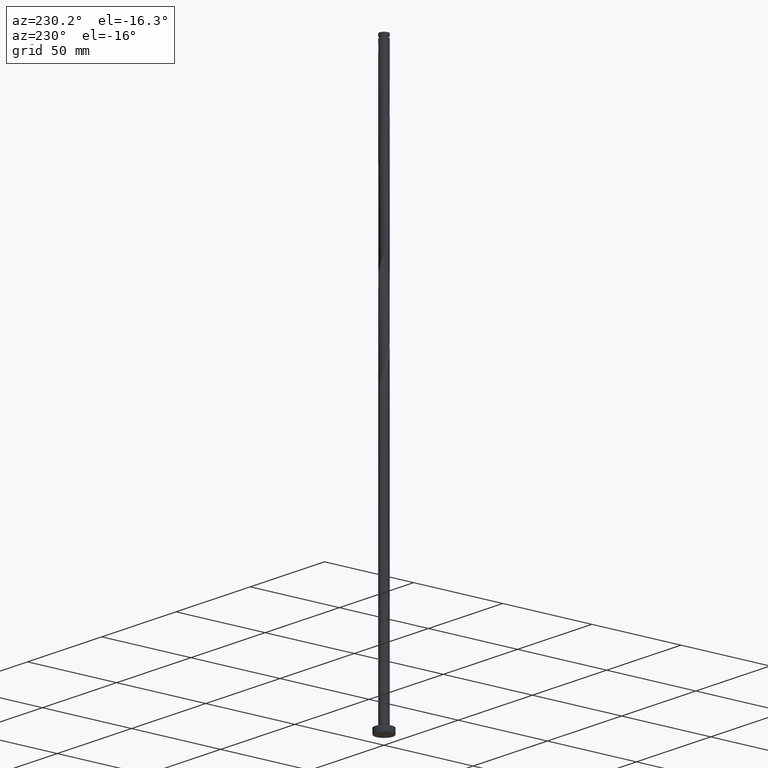
[diagram: clean part render]
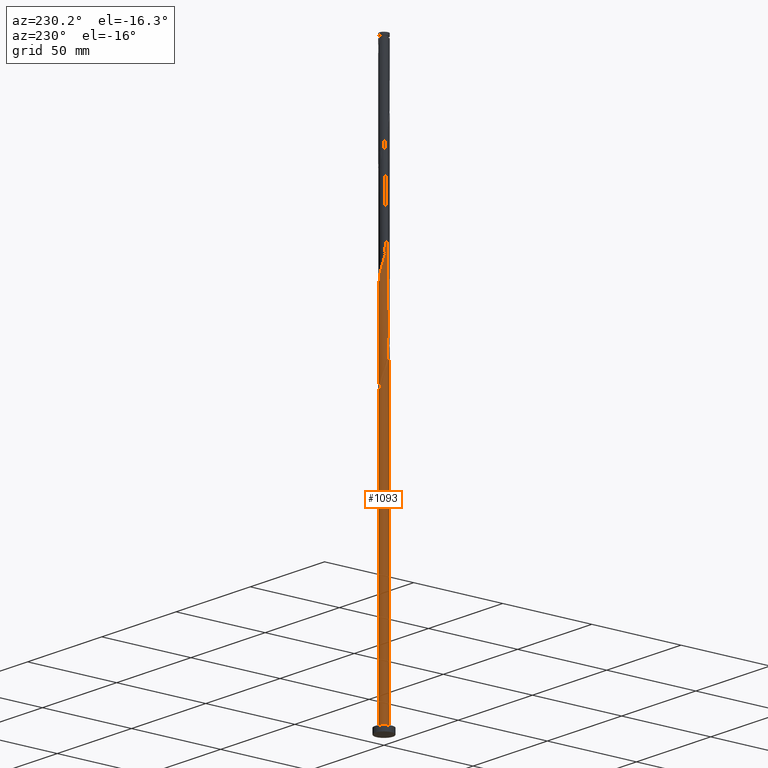
[diagram: same view with one face highlighted and labeled with its STEP entity id]
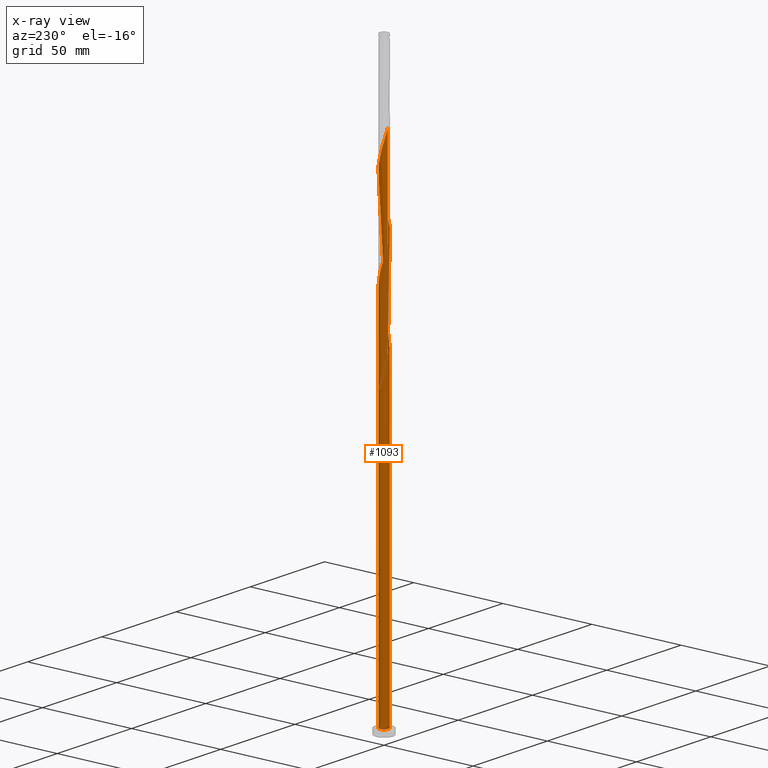
[diagram: x-ray of the same camera — body ghosted, the highlighted face saturated]
A machine part, auxiliary view. The second image highlights one B-rep face of the part: STEP entity #1093.
The next image is the same camera in x-ray: the body ghosted, the highlighted face saturated — about 0% of this face is hidden behind the body in this view.
In plain terms, the highlighted cylindrical surface (bore or boss wall) has radius 2.5 mm, axis along (-0, -0, -1).
Its self-contained STEP definition (entity closure, byte-faithful):
#4 = DIRECTION ( 'NONE',  ( -0.000000000000000000, -0.000000000000000000, -1.000000000000000000 ) ) ;
#10 = CARTESIAN_POINT ( 'NONE',  ( -2.506054079851243621, -0.2214450157980395184, 219.7921757170020385 ) ) ;
#13 = CARTESIAN_POINT ( 'NONE',  ( 2.353958098689213241, -0.8878210494104763484, 189.7921757170021237 ) ) ;
#14 = CARTESIAN_POINT ( 'NONE',  ( -0.7735424213085846379, 2.393945920148763395, 261.0421757170020669 ) ) ;
#17 = CARTESIAN_POINT ( 'NONE',  ( 2.097380685417676194, -1.389366476707185605, 240.4171757170020669 ) ) ;
#20 = CARTESIAN_POINT ( 'NONE',  ( -1.605304872039907016, -1.916506266048968454, 173.8546757170021522 ) ) ;
#25 = CARTESIAN_POINT ( 'NONE',  ( -2.500000000000004885, -6.231510445236996772E-16, 271.5551586390960779 ) ) ;
#30 = CARTESIAN_POINT ( 'NONE',  ( -2.161795315762413683, -1.286851179782861898, 171.0421757170021237 ) ) ;
#35 = CARTESIAN_POINT ( 'NONE',  ( -1.511241513231561751, 1.991519291567521277, 263.8546757170021806 ) ) ;
#41 = CARTESIAN_POINT ( 'NONE',  ( -2.353958098689213241, 0.8878210494104757933, 216.0421757170020669 ) ) ;
#52 =( BOUNDED_CURVE ( )  B_SPLINE_CURVE ( 2, ( #371, #784, #1219, #1229, #936, #104, #1076, #502, #1083, #96, #1496, #242, #926, #953, #1639, #387, #1644 ),
 .UNSPECIFIED., .F., .T. ) 
 B_SPLINE_CURVE_WITH_KNOTS ( ( 3, 2, 2, 2, 2, 2, 2, 2, 3 ),
 ( 0.9295303401299221946, 0.9375000000000000000, 0.9464285714285713969, 0.9553571428571429047, 0.9642857142857143016, 0.9732142857142856984, 0.9821428571428570953, 0.9910714285714286031, 1.000000000000000000 ),
 .UNSPECIFIED. ) 
 CURVE ( )  GEOMETRIC_REPRESENTATION_ITEM ( )  RATIONAL_B_SPLINE_CURVE ( ( 0.9079949616362208431, 0.9039886423360843359, 0.9090909090909509160, 0.9033747362666260106, 0.9090909090909509160, 0.9033747362666260106, 0.9090909090909509160, 0.9033747362666260106, 0.9090909090909509160, 0.9033747362666260106, 0.9090909090909509160, 0.9033747362666260106, 0.9090909090909509160, 0.9033747362666260106, 0.9090909090909509160, 0.9033747362666260106, 0.9090909090909509160 ) ) 
 REPRESENTATION_ITEM ( '' )  );
#53 = CARTESIAN_POINT ( 'NONE',  ( -2.423228161154339588, 0.6147888084444768086, 216.9796757170021522 ) ) ;
#56 = CARTESIAN_POINT ( 'NONE',  ( -2.499276151735354556, 0.06015577584021881280, 166.3546757170020953 ) ) ;
#65 = CARTESIAN_POINT ( 'NONE',  ( 0.7735424213085844158, -2.393945920148763840, 234.7921757170020953 ) ) ;
#68 = CARTESIAN_POINT ( 'NONE',  ( -2.097380685417676194, 1.389366476707185161, 161.6671757170020953 ) ) ;
#78 = CARTESIAN_POINT ( 'NONE',  ( 2.500000000000000000, 0.000000000000000000, 3.000000000000000000 ) ) ;
#96 = CARTESIAN_POINT ( 'NONE',  ( -1.389366476707182052, 2.097380685417672197, 161.6671757170021237 ) ) ;
#104 = CARTESIAN_POINT ( 'NONE',  ( -2.161795315762410130, 1.286851179782860122, 165.4171757170020669 ) ) ;
#108 = CARTESIAN_POINT ( 'NONE',  ( -1.389366476707185161, -2.097380685417676194, 227.2921757170021237 ) ) ;
#109 = ORIENTED_EDGE ( 'NONE', *, *, #1006, .F. ) ;
#117 = DIRECTION ( 'NONE',  ( 1.000000000000000000, 0.000000000000000000, 0.000000000000000000 ) ) ;
#122 = CARTESIAN_POINT ( 'NONE',  ( 1.389366476707185605, 2.097380685417676194, 201.0421757170020385 ) ) ;
#129 = LINE ( 'NONE', #281, #474 ) ;
#136 = CARTESIAN_POINT ( 'NONE',  ( 0.3417565674784777130, 2.492498223619464159, 257.2921757170021237 ) ) ;
#143 = CARTESIAN_POINT ( 'NONE',  ( -2.225669392053444273, 1.138593763058830755, 267.6046757170021237 ) ) ;
#153 = CARTESIAN_POINT ( 'NONE',  ( 2.097380685417676194, -1.389366476707185605, 187.9171757170020669 ) ) ;
#158 = VERTEX_POINT ( 'NONE', #78 ) ;
#159 = CARTESIAN_POINT ( 'NONE',  ( -1.821243267372628427, -1.735631846680259827, 172.9171757170021237 ) ) ;
#162 = CARTESIAN_POINT ( 'NONE',  ( -2.450000000000003730, -0.4974937185533121475, 220.7296757170021522 ) ) ;
#165 = CARTESIAN_POINT ( 'NONE',  ( 0.06015577584021940261, 2.499276151735354556, 258.2296757170021237 ) ) ;
#174 = CARTESIAN_POINT ( 'NONE',  ( 2.225669392053444273, -1.138593763058830977, 241.3546757170021237 ) ) ;
#190 = EDGE_CURVE ( 'NONE', #870, #895, #1791, .T. ) ;
#198 = CARTESIAN_POINT ( 'NONE',  ( -2.500000000000000000, 0.000000000000000000, 315.0000000000000000 ) ) ;
#209 = DIRECTION ( 'NONE',  ( -0.000000000000000000, -0.000000000000000000, -1.000000000000000000 ) ) ;
#215 = CARTESIAN_POINT ( 'NONE',  ( 0.4974937185533118145, -2.450000000000003730, 233.8546757170021522 ) ) ;
#242 = CARTESIAN_POINT ( 'NONE',  ( -0.8878210494104737949, 2.353958098689209244, 159.7921757170021237 ) ) ;
#253 = CARTESIAN_POINT ( 'NONE',  ( 2.161795315762413683, 1.286851179782861676, 197.2921757170021522 ) ) ;
#263 = ORIENTED_EDGE ( 'NONE', *, *, #528, .T. ) ;
#268 = CARTESIAN_POINT ( 'NONE',  ( -2.500000000000004885, -6.231510445236996772E-16, 271.5551586390960779 ) ) ;
#278 = CARTESIAN_POINT ( 'NONE',  ( 1.511241513231561528, -1.991519291567521277, 185.1046757170021237 ) ) ;
#279 = CARTESIAN_POINT ( 'NONE',  ( 2.450000000000003730, 0.4974937185533118145, 246.9796757170021237 ) ) ;
#281 = CARTESIAN_POINT ( 'NONE',  ( -2.500000000000000000, 0.000000000000000000, 315.0000000000000000 ) ) ;
#283 = CARTESIAN_POINT ( 'NONE',  ( -2.500000000000004885, -1.003758269322606206E-15, 166.5551586390961347 ) ) ;
#289 = CARTESIAN_POINT ( 'NONE',  ( 1.030196800545723157, -2.277870617955588983, 183.2296757170021806 ) ) ;
#292 = CARTESIAN_POINT ( 'NONE',  ( 1.916506266048968010, -1.605304872039907016, 239.4796757170021237 ) ) ;
#306 = CARTESIAN_POINT ( 'NONE',  ( 0.000000000000000000, 0.000000000000000000, 155.1046757170021237 ) ) ;
#332 = CARTESIAN_POINT ( 'NONE',  ( -2.423228161154339588, 0.6147888084444768086, 164.4796757170021237 ) ) ;
#371 = CARTESIAN_POINT ( 'NONE',  ( -2.499999999999999112, 1.682880964552041655E-15, 169.9041927949081980 ) ) ;
#381 = AXIS2_PLACEMENT_3D ( 'NONE', #1724, #1022, #767 ) ;
#387 = CARTESIAN_POINT ( 'NONE',  ( 0.2214450157980396849, 2.506054079851238736, 156.0421757170020669 ) ) ;
#390 = CARTESIAN_POINT ( 'NONE',  ( -0.7735424213085846379, 2.393945920148763395, 208.5421757170020669 ) ) ;
#398 = CARTESIAN_POINT ( 'NONE',  ( 0.6147888084444771417, 2.423228161154339588, 203.8546757170021522 ) ) ;
#410 = CIRCLE ( 'NONE', #504, 2.500000000000000000 ) ;
#418 = CARTESIAN_POINT ( 'NONE',  ( 2.393945920148763840, 0.7735424213085844158, 247.9171757170020953 ) ) ;
#434 = DIRECTION ( 'NONE',  ( 1.000000000000000000, 0.000000000000000000, 0.000000000000000000 ) ) ;
#439 = CARTESIAN_POINT ( 'NONE',  ( 1.030196800545723157, -2.277870617955588983, 235.7296757170020953 ) ) ;
#443 = CARTESIAN_POINT ( 'NONE',  ( -0.8878210494104763484, -2.353958098689213241, 176.6671757170020385 ) ) ;
#451 = CARTESIAN_POINT ( 'NONE',  ( -2.393945920148763395, -0.7735424213085844158, 169.1671757170020669 ) ) ;
#474 = VECTOR ( 'NONE', #4, 1000.000000000000000 ) ;
#502 = CARTESIAN_POINT ( 'NONE',  ( -1.821243267372623542, 1.735631846680256718, 163.5421757170021237 ) ) ;
#504 = AXIS2_PLACEMENT_3D ( 'NONE', #517, #1778, #117 ) ;
#505 = CARTESIAN_POINT ( 'NONE',  ( -2.225669392053444273, 1.138593763058830755, 215.1046757170021522 ) ) ;
#508 = CARTESIAN_POINT ( 'NONE',  ( -1.821243267372628427, -1.735631846680259827, 225.4171757170020669 ) ) ;
#514 = EDGE_CURVE ( 'NONE', #895, #842, #129, .T. ) ;
#517 = CARTESIAN_POINT ( 'NONE',  ( 0.000000000000000000, 0.000000000000000000, 3.000000000000000000 ) ) ;
#525 = CARTESIAN_POINT ( 'NONE',  ( -0.6147888084444770307, -2.423228161154339588, 230.1046757170020669 ) ) ;
#528 = EDGE_CURVE ( 'NONE', #158, #842, #1547, .T. ) ;
#539 = CARTESIAN_POINT ( 'NONE',  ( 0.7735424213085844158, -2.393945920148763840, 182.2921757170020953 ) ) ;
#540 = CARTESIAN_POINT ( 'NONE',  ( -2.097380685417676194, 1.389366476707185161, 214.1671757170021237 ) ) ;
#541 = CARTESIAN_POINT ( 'NONE',  ( 1.821243267372628427, 1.735631846680259605, 199.1671757170020953 ) ) ;
#548 = CARTESIAN_POINT ( 'NONE',  ( 0.2214450157980393796, -2.506054079851243621, 180.4171757170021522 ) ) ;
#557 = CARTESIAN_POINT ( 'NONE',  ( -0.3417565674784773799, -2.492498223619464603, 178.5421757170020669 ) ) ;
#558 = CARTESIAN_POINT ( 'NONE',  ( 1.138593763058830977, 2.225669392053444273, 254.4796757170021522 ) ) ;
#564 = DIRECTION ( 'NONE',  ( 0.000000000000000000, -0.000000000000000000, -1.000000000000000000 ) ) ;
#566 = CARTESIAN_POINT ( 'NONE',  ( -2.097380685417676194, 1.389366476707185161, 266.6671757170020669 ) ) ;
#575 = CARTESIAN_POINT ( 'NONE',  ( -1.286851179782861898, 2.161795315762413683, 262.9171757170020669 ) ) ;
#588 = CARTESIAN_POINT ( 'NONE',  ( -2.499276151735354556, 0.06015577584021881280, 218.8546757170021237 ) ) ;
#592 = CARTESIAN_POINT ( 'NONE',  ( -2.423228161154339588, 0.6147888084444768086, 269.4796757170022374 ) ) ;
#595 = CARTESIAN_POINT ( 'NONE',  ( -0.06015577584021904178, -2.499276151735355000, 231.9796757170020953 ) ) ;
#600 = CARTESIAN_POINT ( 'NONE',  ( -2.277870617955588983, -1.030196800545723379, 222.6046757170022090 ) ) ;
#603 = CARTESIAN_POINT ( 'NONE',  ( -1.511241513231561751, 1.991519291567521277, 158.8546757170021237 ) ) ;
#605 = LINE ( 'NONE', #198, #675 ) ;
#623 = CARTESIAN_POINT ( 'NONE',  ( -2.225669392053444273, 1.138593763058830755, 162.6046757170021237 ) ) ;
#662 = CARTESIAN_POINT ( 'NONE',  ( -1.138593763058830755, -2.225669392053444273, 228.2296757170021806 ) ) ;
#674 = CARTESIAN_POINT ( 'NONE',  ( -1.511241513231561751, 1.991519291567521277, 211.3546757170021237 ) ) ;
#675 = VECTOR ( 'NONE', #209, 1000.000000000000000 ) ;
#676 = CARTESIAN_POINT ( 'NONE',  ( 1.138593763058830977, 2.225669392053444273, 201.9796757170021237 ) ) ;
#695 = CARTESIAN_POINT ( 'NONE',  ( -0.2214450157980390188, 2.506054079851243621, 259.1671757170020669 ) ) ;
#702 = CARTESIAN_POINT ( 'NONE',  ( -1.916506266048968232, 1.605304872039907016, 265.7296757170021237 ) ) ;
#708 = ORIENTED_EDGE ( 'NONE', *, *, #1666, .T. ) ;
#719 = CARTESIAN_POINT ( 'NONE',  ( -2.393945920148763395, -0.7735424213085844158, 221.6671757170021237 ) ) ;
#721 = CARTESIAN_POINT ( 'NONE',  ( -1.286851179782861898, 2.161795315762413683, 210.4171757170020669 ) ) ;
#723 = CARTESIAN_POINT ( 'NONE',  ( 1.389366476707185605, 2.097380685417676194, 253.5421757170019816 ) ) ;
#732 = CARTESIAN_POINT ( 'NONE',  ( -2.353958098689213241, 0.8878210494104757933, 268.5421757170021806 ) ) ;
#734 = EDGE_LOOP ( 'NONE', ( #109, #1216, #1447, #708, #263, #1786, #1111, #747, #1133 ) ) ;
#747 = ORIENTED_EDGE ( 'NONE', *, *, #1551, .T. ) ;
#767 = DIRECTION ( 'NONE',  ( -1.000000000000000000, 0.000000000000000000, 0.000000000000000000 ) ) ;
#784 = CARTESIAN_POINT ( 'NONE',  ( -2.499999999999997780, 0.2512594538148081313, 169.0659217159445404 ) ) ;
#804 = CARTESIAN_POINT ( 'NONE',  ( 2.506054079851243621, 0.2214450157980391853, 193.5421757170020385 ) ) ;
#819 = CARTESIAN_POINT ( 'NONE',  ( -0.6147888084444770307, -2.423228161154339588, 177.6046757170021522 ) ) ;
#821 = VERTEX_POINT ( 'NONE', #1584 ) ;
#835 = CARTESIAN_POINT ( 'NONE',  ( -1.030196800545723379, 2.277870617955588983, 261.9796757170021237 ) ) ;
#842 = VERTEX_POINT ( 'NONE', #1092 ) ;
#845 = CARTESIAN_POINT ( 'NONE',  ( 1.605304872039907016, 1.916506266048968010, 252.6046757170020669 ) ) ;
#855 = CARTESIAN_POINT ( 'NONE',  ( -2.492498223619464603, 0.3417565674784772689, 270.4171757170021237 ) ) ;
#864 = CARTESIAN_POINT ( 'NONE',  ( 2.423228161154339588, -0.6147888084444771417, 243.2296757170020953 ) ) ;
#870 = VERTEX_POINT ( 'NONE', #1647 ) ;
#872 = CARTESIAN_POINT ( 'NONE',  ( -0.4974937185533115924, 2.450000000000003730, 155.1046757170021237 ) ) ;
#882 = CARTESIAN_POINT ( 'NONE',  ( -1.030196800545723379, 2.277870617955588983, 156.9796757170021237 ) ) ;
#895 = VERTEX_POINT ( 'NONE', #1353 ) ;
#908 = CARTESIAN_POINT ( 'NONE',  ( 1.511241513231561528, -1.991519291567521277, 237.6046757170021522 ) ) ;
#926 = CARTESIAN_POINT ( 'NONE',  ( -0.6147888084444751433, 2.423228161154335147, 158.8546757170021522 ) ) ;
#928 = CARTESIAN_POINT ( 'NONE',  ( 2.393945920148763840, 0.7735424213085844158, 195.4171757170021806 ) ) ;
#936 = CARTESIAN_POINT ( 'NONE',  ( -2.277870617955584098, 1.030196800545722269, 166.3546757170021237 ) ) ;
#938 = EDGE_CURVE ( 'NONE', #895, #1571, #1088, .T. ) ;
#939 = AXIS2_PLACEMENT_3D ( 'NONE', #306, #564, #1385 ) ;
#948 = CARTESIAN_POINT ( 'NONE',  ( 2.277870617955588983, 1.030196800545723157, 196.3546757170021237 ) ) ;
#953 = CARTESIAN_POINT ( 'NONE',  ( -0.3417565674784759922, 2.492498223619459718, 157.9171757170020669 ) ) ;
#959 = CARTESIAN_POINT ( 'NONE',  ( 0.2214450157980393796, -2.506054079851243621, 232.9171757170020953 ) ) ;
#984 = CARTESIAN_POINT ( 'NONE',  ( 2.506054079851243621, 0.2214450157980391853, 246.0421757170021237 ) ) ;
#1006 = EDGE_CURVE ( 'NONE', #1571, #821, #605, .T. ) ;
#1011 = CARTESIAN_POINT ( 'NONE',  ( -2.500000000000005329, 0.03008224291596932679, 166.4547959508710164 ) ) ;
#1022 = DIRECTION ( 'NONE',  ( -0.000000000000000000, -0.000000000000000000, -1.000000000000000000 ) ) ;
#1056 = CARTESIAN_POINT ( 'NONE',  ( -1.605304872039907016, -1.916506266048968454, 226.3546757170021237 ) ) ;
#1059 = CARTESIAN_POINT ( 'NONE',  ( -2.492498223619464603, 0.3417565674784772689, 217.9171757170021237 ) ) ;
#1071 = CARTESIAN_POINT ( 'NONE',  ( -0.3417565674784773799, -2.492498223619464603, 231.0421757170021237 ) ) ;
#1076 = CARTESIAN_POINT ( 'NONE',  ( -1.991519291567517280, 1.511241513231559530, 164.4796757170022090 ) ) ;
#1079 = CARTESIAN_POINT ( 'NONE',  ( 2.450000000000003730, 0.4974937185533118145, 194.4796757170021806 ) ) ;
#1083 = CARTESIAN_POINT ( 'NONE',  ( -1.605304872039903463, 1.916506266048965124, 162.6046757170021237 ) ) ;
#1088 =( BOUNDED_CURVE ( )  B_SPLINE_CURVE ( 2, ( #283, #1700, #1391, #451, #1667, #30, #1405, #159, #20, #1124, #1688, #443, #819, #557, #1654, #548, #1239, #539, #289, #1661, #278, #1108, #1397, #153, #1266, #13, #1646, #1222, #1211, #804, #1079, #928, #948, #253, #1490, #541, #1363, #122, #676, #1232, #398, #1117, #1631, #1221, #1774, #390, #1362, #721, #674, #1274, #1784, #540, #505, #41, #53, #1059, #588, #10, #162, #719, #600, #1148, #1348, #508, #1056, #108, #662, #1215, #525, #1071, #595, #959, #215, #65, #439, #1240, #908, #1471, #292, #17, #174, #1101, #864, #1518, #1257, #984, #279, #418, #1119, #1662, #1683, #1673, #845, #723, #558, #1380, #1527, #136, #165, #695, #1276, #14, #835, #575, #35, #1559, #702, #566, #143, #732, #592, #855, #1548, #1283, #268 ),
 .UNSPECIFIED., .F., .T. ) 
 B_SPLINE_CURVE_WITH_KNOTS ( ( 3, 2, 2, 2, 2, 2, 2, 2, 2, 2, 2, 2, 2, 2, 2, 2, 2, 2, 2, 2, 2, 2, 2, 2, 2, 2, 2, 2, 2, 2, 2, 2, 2, 2, 2, 2, 2, 2, 2, 2, 2, 2, 2, 2, 2, 2, 2, 2, 2, 2, 2, 2, 2, 2, 2, 2, 2, 3 ),
 ( 0.05453034012992227092, 0.06250000000000000000, 0.07142857142857139685, 0.08035714285714290472, 0.08928571428571430157, 0.09821428571428569843, 0.1071428571428570953, 0.1160714285714286031, 0.1250000000000000000, 0.1339285714285713969, 0.1428571428571429047, 0.1517857142857143016, 0.1607142857142856984, 0.1696428571428570953, 0.1785714285714286031, 0.1875000000000000000, 0.1964285714285713969, 0.2053571428571429047, 0.2142857142857143016, 0.2232142857142856984, 0.2321428571428570953, 0.2410714285714286031, 0.2500000000000000000, 0.2589285714285713969, 0.2678571428571429047, 0.2767857142857143016, 0.2857142857142856984, 0.2946428571428570953, 0.3035714285714286031, 0.3125000000000000000, 0.3214285714285713969, 0.3303571428571429047, 0.3392857142857143016, 0.3482142857142856984, 0.3571428571428570953, 0.3660714285714286031, 0.3750000000000000000, 0.3839285714285713969, 0.3928571428571429047, 0.4017857142857143016, 0.4107142857142856984, 0.4196428571428570953, 0.4285714285714286031, 0.4375000000000000000, 0.4464285714285713969, 0.4553571428571429047, 0.4642857142857143016, 0.4732142857142856984, 0.4821428571428570953, 0.4910714285714286031, 0.5000000000000000000, 0.5089285714285713969, 0.5178571428571427937, 0.5267857142857143016, 0.5357142857142856984, 0.5446428571428572063, 0.5535714285714286031, 0.5545303401299219725 ),
 .UNSPECIFIED. ) 
 CURVE ( )  GEOMETRIC_REPRESENTATION_ITEM ( )  RATIONAL_B_SPLINE_CURVE ( ( 0.9079949616362286147, 0.9039886423360921075, 0.9090909090909586876, 0.9033747362666336711, 0.9090909090909586876, 0.9033747362666336711, 0.9090909090909586876, 0.9033747362666336711, 0.9090909090909586876, 0.9033747362666336711, 0.9090909090909586876, 0.9033747362666336711, 0.9090909090909586876, 0.9033747362666336711, 0.9090909090909586876, 0.9033747362666336711, 0.9090909090909586876, 0.9033747362666336711, 0.9090909090909586876, 0.9033747362666336711, 0.9090909090909586876, 0.9033747362666336711, 0.9090909090909586876, 0.9033747362666336711, 0.9090909090909586876, 0.9033747362666336711, 0.9090909090909586876, 0.9033747362666336711, 0.9090909090909586876, 0.9033747362666336711, 0.9090909090909586876, 0.9033747362666336711, 0.9090909090909586876, 0.9033747362666336711, 0.9090909090909586876, 0.9033747362666336711, 0.9090909090909586876, 0.9033747362666336711, 0.9090909090909586876, 0.9033747362666336711, 0.9090909090909586876, 0.9033747362666336711, 0.9090909090909586876, 0.9033747362666336711, 0.9090909090909586876, 0.9033747362666336711, 0.9090909090909586876, 0.9033747362666336711, 0.9090909090909586876, 0.9033747362666336711, 0.9090909090909586876, 0.9033747362666336711, 0.9090909090909586876, 0.9033747362666336711, 0.9090909090909586876, 0.9033747362666336711, 0.9090909090909586876, 0.9033747362666336711, 0.9090909090909586876, 0.9033747362666336711, 0.9090909090909586876, 0.9033747362666336711, 0.9090909090909586876, 0.9033747362666336711, 0.9090909090909586876, 0.9033747362666336711, 0.9090909090909586876, 0.9033747362666336711, 0.9090909090909586876, 0.9033747362666336711, 0.9090909090909586876, 0.9033747362666336711, 0.9090909090909586876, 0.9033747362666336711, 0.9090909090909586876, 0.9033747362666336711, 0.9090909090909586876, 0.9033747362666336711, 0.9090909090909586876, 0.9033747362666336711, 0.9090909090909586876, 0.9033747362666336711, 0.9090909090909586876, 0.9033747362666336711, 0.9090909090909586876, 0.9033747362666336711, 0.9090909090909586876, 0.9033747362666336711, 0.9090909090909586876, 0.9033747362666336711, 0.9090909090909586876, 0.9033747362666336711, 0.9090909090909586876, 0.9033747362666336711, 0.9090909090909586876, 0.9033747362666336711, 0.9090909090909586876, 0.9033747362666336711, 0.9090909090909586876, 0.9033747362666336711, 0.9090909090909586876, 0.9033747362666336711, 0.9090909090909586876, 0.9033747362666336711, 0.9090909090909586876, 0.9033747362666336711, 0.9090909090909586876, 0.9033747362666336711, 0.9090909090909586876, 0.9033747362666336711, 0.9090909090909586876, 0.9033747362666336711, 0.9090909090909586876, 0.9084770030215004732, 0.9079949616362288367 ) ) 
 REPRESENTATION_ITEM ( '' )  );
#1092 = CARTESIAN_POINT ( 'NONE',  ( -2.500000000000000000, 0.000000000000000000, 3.000000000000000000 ) ) ;
#1093 = ADVANCED_FACE ( 'NONE', ( #1605 ), #1307, .T. ) ;
#1101 = CARTESIAN_POINT ( 'NONE',  ( 2.353958098689213241, -0.8878210494104763484, 242.2921757170020669 ) ) ;
#1108 = CARTESIAN_POINT ( 'NONE',  ( 1.735631846680259827, -1.821243267372628427, 186.0421757170020953 ) ) ;
#1111 = ORIENTED_EDGE ( 'NONE', *, *, #190, .F. ) ;
#1117 = CARTESIAN_POINT ( 'NONE',  ( 0.3417565674784777130, 2.492498223619464159, 204.7921757170021237 ) ) ;
#1119 = CARTESIAN_POINT ( 'NONE',  ( 2.277870617955588983, 1.030196800545723157, 248.8546757170021237 ) ) ;
#1124 = CARTESIAN_POINT ( 'NONE',  ( -1.389366476707185161, -2.097380685417676194, 174.7921757170020953 ) ) ;
#1133 = ORIENTED_EDGE ( 'NONE', *, *, #1344, .F. ) ;
#1136 = VERTEX_POINT ( 'NONE', #1176 ) ;
#1138 = CARTESIAN_POINT ( 'NONE',  ( -0.7735424213085846379, 2.393945920148763395, 156.0421757170020953 ) ) ;
#1148 = CARTESIAN_POINT ( 'NONE',  ( -2.161795315762413683, -1.286851179782861898, 223.5421757170020669 ) ) ;
#1174 = CARTESIAN_POINT ( 'NONE',  ( -2.500000000000004885, -1.003758269322606206E-15, 166.5551586390961347 ) ) ;
#1176 = CARTESIAN_POINT ( 'NONE',  ( 0.4974937185533123141, 2.449999999999998401, 155.1046757170021237 ) ) ;
#1211 = CARTESIAN_POINT ( 'NONE',  ( 2.499276151735355000, -0.06015577584021924301, 192.6046757170021806 ) ) ;
#1215 = CARTESIAN_POINT ( 'NONE',  ( -0.8878210494104763484, -2.353958098689213241, 229.1671757170021806 ) ) ;
#1216 = ORIENTED_EDGE ( 'NONE', *, *, #938, .F. ) ;
#1219 = CARTESIAN_POINT ( 'NONE',  ( -2.449999999999998401, 0.4974937185533118145, 168.2296757170021806 ) ) ;
#1221 = CARTESIAN_POINT ( 'NONE',  ( -0.2214450157980390188, 2.506054079851243621, 206.6671757170021237 ) ) ;
#1222 = CARTESIAN_POINT ( 'NONE',  ( 2.492498223619464159, -0.3417565674784776020, 191.6671757170021237 ) ) ;
#1228 = AXIS2_PLACEMENT_3D ( 'NONE', #1775, #1456, #434 ) ;
#1229 = CARTESIAN_POINT ( 'NONE',  ( -2.393945920148757622, 0.7735424213085836387, 167.2921757170021522 ) ) ;
#1232 = CARTESIAN_POINT ( 'NONE',  ( 0.8878210494104767925, 2.353958098689212797, 202.9171757170020953 ) ) ;
#1239 = CARTESIAN_POINT ( 'NONE',  ( 0.4974937185533118145, -2.450000000000003730, 181.3546757170021237 ) ) ;
#1240 = CARTESIAN_POINT ( 'NONE',  ( 1.286851179782861676, -2.161795315762413683, 236.6671757170020385 ) ) ;
#1257 = CARTESIAN_POINT ( 'NONE',  ( 2.499276151735355000, -0.06015577584021924301, 245.1046757170021522 ) ) ;
#1259 = CIRCLE ( 'NONE', #939, 2.500000000000000000 ) ;
#1266 = CARTESIAN_POINT ( 'NONE',  ( 2.225669392053444273, -1.138593763058830977, 188.8546757170020953 ) ) ;
#1274 = CARTESIAN_POINT ( 'NONE',  ( -1.735631846680260049, 1.821243267372628427, 212.2921757170021237 ) ) ;
#1276 = CARTESIAN_POINT ( 'NONE',  ( -0.4974937185533115924, 2.450000000000003730, 260.1046757170021806 ) ) ;
#1283 = CARTESIAN_POINT ( 'NONE',  ( -2.500000000000004885, 0.03008224291597869776, 271.4547959508709596 ) ) ;
#1298 = CARTESIAN_POINT ( 'NONE',  ( -1.916506266048968232, 1.605304872039907016, 160.7296757170021806 ) ) ;
#1307 = CYLINDRICAL_SURFACE ( 'NONE', #381, 2.500000000000000000 ) ;
#1344 = EDGE_CURVE ( 'NONE', #821, #1136, #52, .T. ) ;
#1348 = CARTESIAN_POINT ( 'NONE',  ( -1.991519291567521277, -1.511241513231561528, 224.4796757170021522 ) ) ;
#1353 = CARTESIAN_POINT ( 'NONE',  ( -2.500000000000004885, -1.003758269322606206E-15, 166.5551586390961347 ) ) ;
#1362 = CARTESIAN_POINT ( 'NONE',  ( -1.030196800545723379, 2.277870617955588983, 209.4796757170021522 ) ) ;
#1363 = CARTESIAN_POINT ( 'NONE',  ( 1.605304872039907016, 1.916506266048968010, 200.1046757170021522 ) ) ;
#1380 = CARTESIAN_POINT ( 'NONE',  ( 0.8878210494104767925, 2.353958098689212797, 255.4171757170020669 ) ) ;
#1385 = DIRECTION ( 'NONE',  ( -1.000000000000000000, 0.000000000000000000, 0.000000000000000000 ) ) ;
#1391 = CARTESIAN_POINT ( 'NONE',  ( -2.450000000000003730, -0.4974937185533121475, 168.2296757170021522 ) ) ;
#1397 = CARTESIAN_POINT ( 'NONE',  ( 1.916506266048968010, -1.605304872039907016, 186.9796757170020953 ) ) ;
#1405 = CARTESIAN_POINT ( 'NONE',  ( -1.991519291567521277, -1.511241513231561528, 171.9796757170021237 ) ) ;
#1426 = CARTESIAN_POINT ( 'NONE',  ( -1.735631846680260049, 1.821243267372628427, 159.7921757170021237 ) ) ;
#1437 = CARTESIAN_POINT ( 'NONE',  ( -1.286851179782861898, 2.161795315762413683, 157.9171757170021237 ) ) ;
#1447 = ORIENTED_EDGE ( 'NONE', *, *, #514, .T. ) ;
#1456 = DIRECTION ( 'NONE',  ( 0.000000000000000000, 0.000000000000000000, 1.000000000000000000 ) ) ;
#1471 = CARTESIAN_POINT ( 'NONE',  ( 1.735631846680259827, -1.821243267372628427, 238.5421757170021522 ) ) ;
#1490 = CARTESIAN_POINT ( 'NONE',  ( 1.991519291567521721, 1.511241513231561084, 198.2296757170021237 ) ) ;
#1496 = CARTESIAN_POINT ( 'NONE',  ( -1.138593763058828090, 2.225669392053441165, 160.7296757170022090 ) ) ;
#1518 = CARTESIAN_POINT ( 'NONE',  ( 2.492498223619464159, -0.3417565674784776020, 244.1671757170020953 ) ) ;
#1527 = CARTESIAN_POINT ( 'NONE',  ( 0.6147888084444771417, 2.423228161154339588, 256.3546757170021806 ) ) ;
#1547 = CIRCLE ( 'NONE', #1228, 2.500000000000000000 ) ;
#1548 = CARTESIAN_POINT ( 'NONE',  ( -2.499276151735354556, 0.06015577584021881280, 271.3546757170021237 ) ) ;
#1551 = EDGE_CURVE ( 'NONE', #870, #1136, #1259, .T. ) ;
#1559 = CARTESIAN_POINT ( 'NONE',  ( -1.735631846680260049, 1.821243267372628427, 264.7921757170020669 ) ) ;
#1571 = VERTEX_POINT ( 'NONE', #25 ) ;
#1584 = CARTESIAN_POINT ( 'NONE',  ( -2.499999999999999112, 1.682880964552041655E-15, 169.9041927949081980 ) ) ;
#1596 = CARTESIAN_POINT ( 'NONE',  ( -2.492498223619464603, 0.3417565674784772689, 165.4171757170020953 ) ) ;
#1605 = FACE_OUTER_BOUND ( 'NONE', #734, .T. ) ;
#1631 = CARTESIAN_POINT ( 'NONE',  ( 0.06015577584021940261, 2.499276151735354556, 205.7296757170021522 ) ) ;
#1639 = CARTESIAN_POINT ( 'NONE',  ( -0.06015577584021813279, 2.499276151735350116, 156.9796757170021522 ) ) ;
#1644 = CARTESIAN_POINT ( 'NONE',  ( 0.4974937185533123141, 2.449999999999998401, 155.1046757170021237 ) ) ;
#1646 = CARTESIAN_POINT ( 'NONE',  ( 2.423228161154339588, -0.6147888084444771417, 190.7296757170021237 ) ) ;
#1647 = CARTESIAN_POINT ( 'NONE',  ( -0.4974937185533115924, 2.450000000000003730, 155.1046757170021237 ) ) ;
#1654 = CARTESIAN_POINT ( 'NONE',  ( -0.06015577584021904178, -2.499276151735355000, 179.4796757170021237 ) ) ;
#1661 = CARTESIAN_POINT ( 'NONE',  ( 1.286851179782861676, -2.161795315762413683, 184.1671757170020953 ) ) ;
#1662 = CARTESIAN_POINT ( 'NONE',  ( 2.161795315762413683, 1.286851179782861676, 249.7921757170021237 ) ) ;
#1666 = EDGE_CURVE ( 'NONE', #842, #158, #410, .T. ) ;
#1667 = CARTESIAN_POINT ( 'NONE',  ( -2.277870617955588983, -1.030196800545723379, 170.1046757170021237 ) ) ;
#1673 = CARTESIAN_POINT ( 'NONE',  ( 1.821243267372628427, 1.735631846680259605, 251.6671757170020953 ) ) ;
#1683 = CARTESIAN_POINT ( 'NONE',  ( 1.991519291567521721, 1.511241513231561084, 250.7296757170021237 ) ) ;
#1688 = CARTESIAN_POINT ( 'NONE',  ( -1.138593763058830755, -2.225669392053444273, 175.7296757170020953 ) ) ;
#1700 = CARTESIAN_POINT ( 'NONE',  ( -2.500000000000003109, -0.2512594538148103518, 167.3934297180597071 ) ) ;
#1713 = CARTESIAN_POINT ( 'NONE',  ( -2.353958098689213241, 0.8878210494104757933, 163.5421757170021522 ) ) ;
#1724 = CARTESIAN_POINT ( 'NONE',  ( 0.000000000000000000, 0.000000000000000000, 315.0000000000000000 ) ) ;
#1774 = CARTESIAN_POINT ( 'NONE',  ( -0.4974937185533115924, 2.450000000000003730, 207.6046757170020953 ) ) ;
#1775 = CARTESIAN_POINT ( 'NONE',  ( 0.000000000000000000, 0.000000000000000000, 3.000000000000000000 ) ) ;
#1778 = DIRECTION ( 'NONE',  ( 0.000000000000000000, 0.000000000000000000, 1.000000000000000000 ) ) ;
#1784 = CARTESIAN_POINT ( 'NONE',  ( -1.916506266048968232, 1.605304872039907016, 213.2296757170021237 ) ) ;
#1786 = ORIENTED_EDGE ( 'NONE', *, *, #514, .F. ) ;
#1791 =( BOUNDED_CURVE ( )  B_SPLINE_CURVE ( 2, ( #872, #1138, #882, #1437, #603, #1426, #1298, #68, #623, #1713, #332, #1596, #56, #1011, #1174 ),
 .UNSPECIFIED., .F., .T. ) 
 B_SPLINE_CURVE_WITH_KNOTS ( ( 3, 2, 2, 2, 2, 2, 2, 3 ),
 ( 0.000000000000000000, 0.008928571428571396851, 0.01785714285714290472, 0.02678571428571430157, 0.03571428571428569843, 0.04464285714285709528, 0.05357142857142860315, 0.05453034012992227092 ),
 .UNSPECIFIED. ) 
 CURVE ( )  GEOMETRIC_REPRESENTATION_ITEM ( )  RATIONAL_B_SPLINE_CURVE ( ( 0.9090909090909586876, 0.9033747362666336711, 0.9090909090909586876, 0.9033747362666336711, 0.9090909090909586876, 0.9033747362666336711, 0.9090909090909586876, 0.9033747362666336711, 0.9090909090909586876, 0.9033747362666336711, 0.9090909090909586876, 0.9033747362666336711, 0.9090909090909586876, 0.9084770030215003622, 0.9079949616362286147 ) ) 
 REPRESENTATION_ITEM ( '' )  );